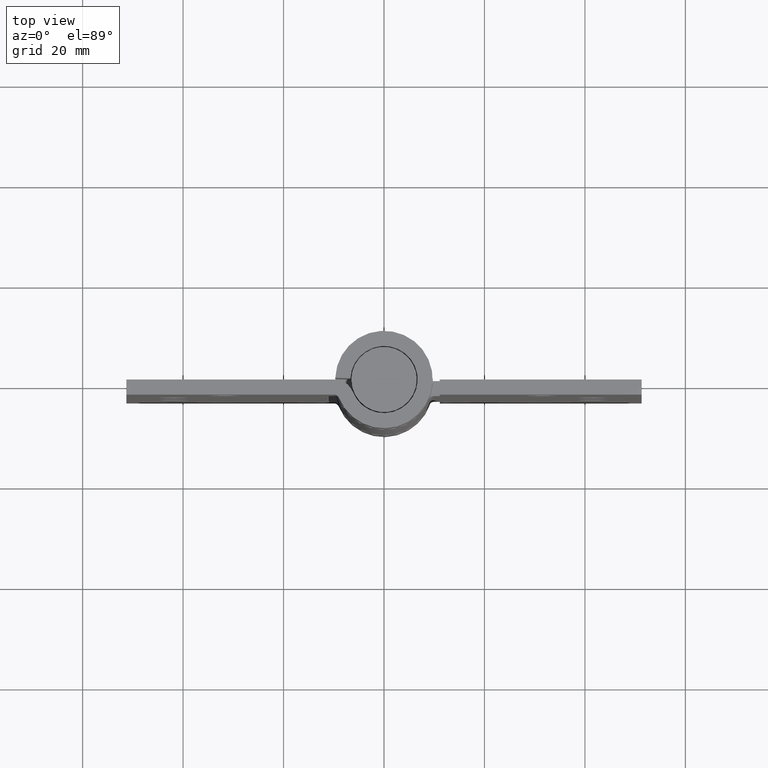
[diagram: clean part render]
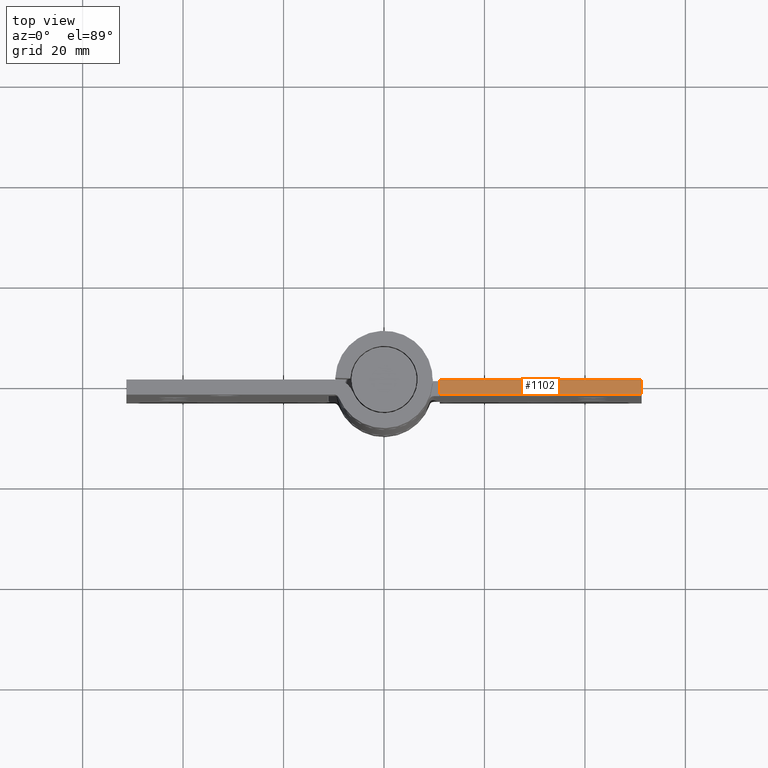
[diagram: same view with one face highlighted and labeled with its STEP entity id]
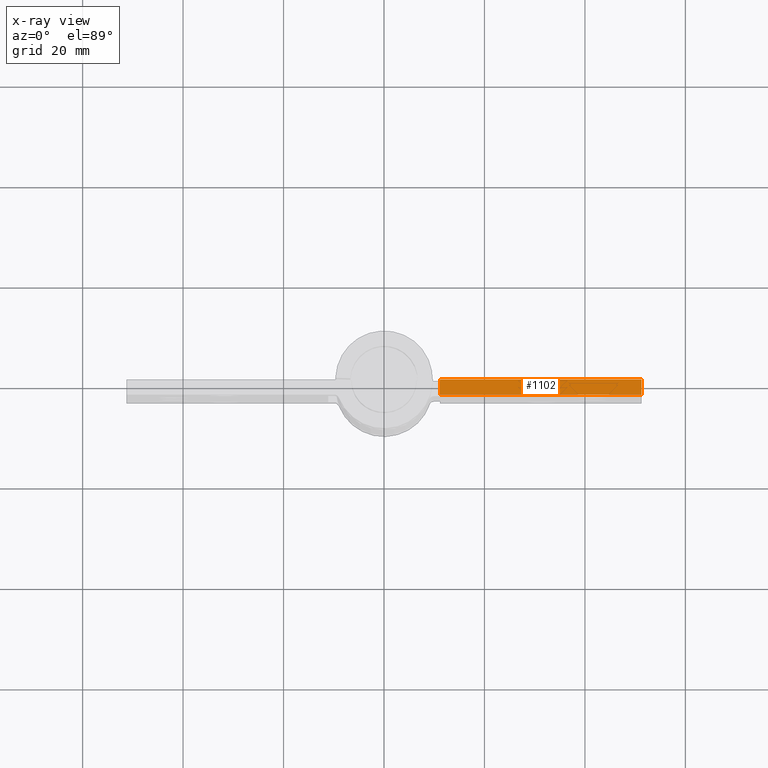
[diagram: x-ray of the same camera — body ghosted, the highlighted face saturated]
A machine part, top view. The second image highlights one B-rep face of the part: STEP entity #1102.
The next image is the same camera in x-ray: the body ghosted, the highlighted face saturated — about 0% of this face is hidden behind the body in this view.
In plain terms, the highlighted planar face has unit normal (0, 0, 1).
Its self-contained STEP definition (entity closure, byte-faithful):
#212=FACE_OUTER_BOUND('',#280,.T.);
#280=EDGE_LOOP('',(#810,#811,#812,#813));
#390=LINE('',#1692,#467);
#401=LINE('',#1732,#478);
#402=LINE('',#1734,#479);
#403=LINE('',#1735,#480);
#467=VECTOR('',#1323,3.);
#478=VECTOR('',#1358,40.2);
#479=VECTOR('',#1359,3.);
#480=VECTOR('',#1360,40.2);
#542=VERTEX_POINT('',#1686);
#544=VERTEX_POINT('',#1690);
#561=VERTEX_POINT('',#1731);
#562=VERTEX_POINT('',#1733);
#649=EDGE_CURVE('',#542,#544,#390,.T.);
#668=EDGE_CURVE('',#544,#561,#401,.T.);
#669=EDGE_CURVE('',#561,#562,#402,.T.);
#670=EDGE_CURVE('',#562,#542,#403,.T.);
#810=ORIENTED_EDGE('',*,*,#649,.T.);
#811=ORIENTED_EDGE('',*,*,#668,.T.);
#812=ORIENTED_EDGE('',*,*,#669,.T.);
#813=ORIENTED_EDGE('',*,*,#670,.T.);
#1070=PLANE('',#1184);
#1102=ADVANCED_FACE('',(#212),#1070,.T.);
#1184=AXIS2_PLACEMENT_3D('',#1730,#1356,#1357);
#1323=DIRECTION('',(0.,-1.,0.));
#1356=DIRECTION('center_axis',(0.,0.,1.));
#1357=DIRECTION('ref_axis',(1.,0.,0.));
#1358=DIRECTION('',(1.,0.,0.));
#1359=DIRECTION('',(0.,1.,0.));
#1360=DIRECTION('',(-1.,-8.75637011670535E-17,0.));
#1686=CARTESIAN_POINT('',(11.1,1.02956277691967E-16,50.75));
#1690=CARTESIAN_POINT('',(11.1,-3.,50.75));
#1692=CARTESIAN_POINT('',(11.1,2.77555756156289E-16,50.75));
#1730=CARTESIAN_POINT('Origin',(20.8,5.55111512312578E-16,50.75));
#1731=CARTESIAN_POINT('',(51.3,-3.,50.75));
#1732=CARTESIAN_POINT('',(9.92421281513048,-3.,50.75));
#1733=CARTESIAN_POINT('',(51.3,3.60822483003176E-15,50.75));
#1734=CARTESIAN_POINT('',(51.3,-3.,50.75));
#1735=CARTESIAN_POINT('',(51.3,3.62301706460752E-15,50.75));